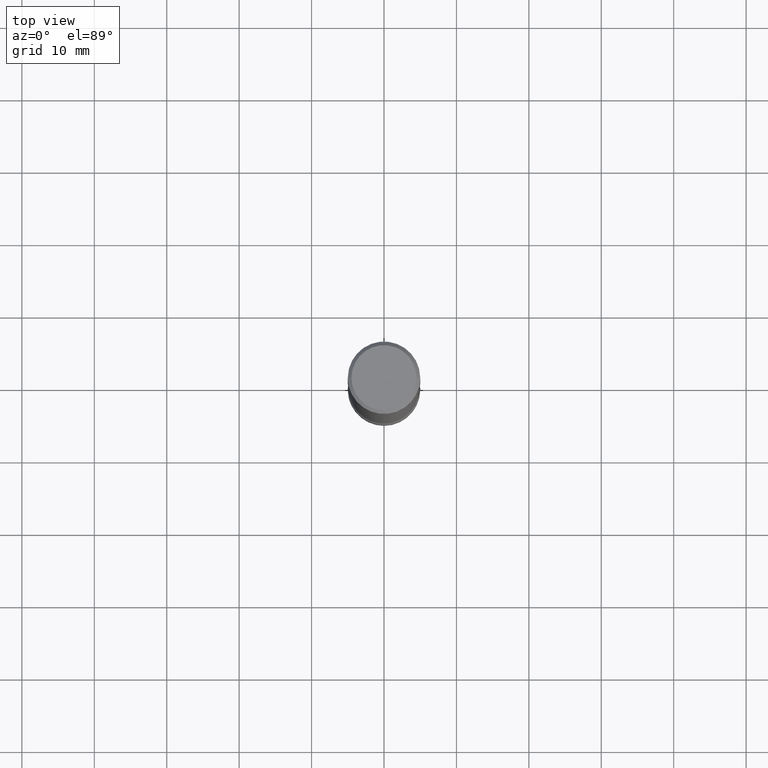
[diagram: clean part render]
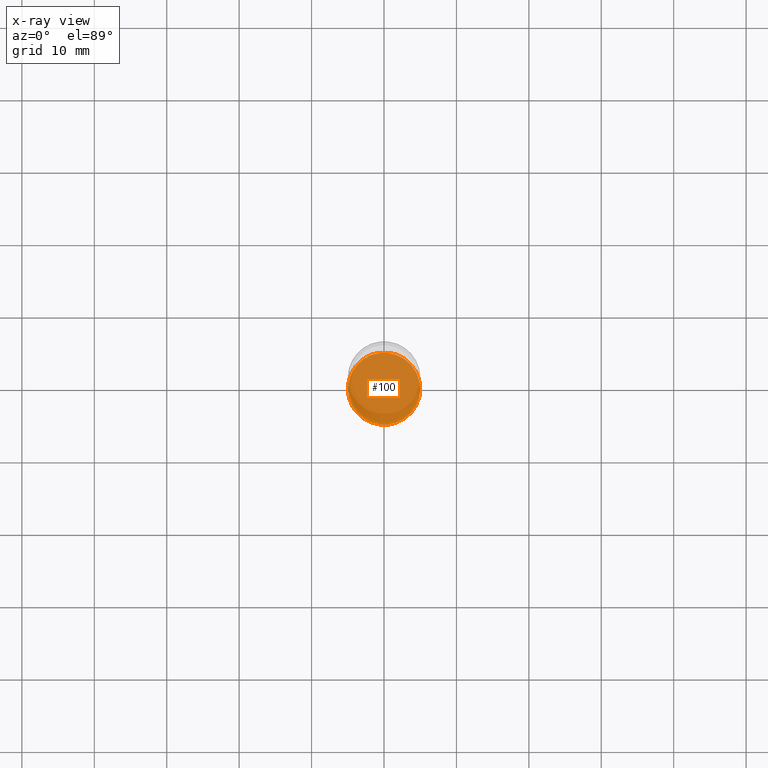
[diagram: x-ray — body ghosted, one internal face saturated and labeled with its STEP entity id]
A machine part, top view, then the same camera in x-ray: the body is ghosted and one INTERNAL B-rep face — a face not visible from any outside direction — is saturated and labeled: STEP entity #100.
In plain terms, the highlighted planar face has unit normal (0, -0, -1).
Its self-contained STEP definition (entity closure, byte-faithful):
#46 = CARTESIAN_POINT ( 'NONE',  ( 1.371104721763778671E-15, 0.1963499999999872847, -3.464600000000000346 ) ) ;
#92 = PLANE ( 'NONE',  #565 ) ;
#97 = DIRECTION ( 'NONE',  ( 2.438088387897960049E-29, -3.491481338843145188E-15, -1.000000000000000000 ) ) ;
#100 = ADVANCED_FACE ( 'NONE', ( #318 ), #92, .T. ) ;
#105 = AXIS2_PLACEMENT_3D ( 'NONE', #310, #468, #395 ) ;
#127 = EDGE_CURVE ( 'NONE', #526, #510, #491, .T. ) ;
#174 = ORIENTED_EDGE ( 'NONE', *, *, #387, .T. ) ;
#224 = DIRECTION ( 'NONE',  ( -1.000000000000000000, 6.982962677686264344E-15, 0.000000000000000000 ) ) ;
#280 = DIRECTION ( 'NONE',  ( -1.000000000000000000, 6.982962677686265922E-15, -4.876176775795935793E-29 ) ) ;
#310 = CARTESIAN_POINT ( 'NONE',  ( 8.472571225909024784E-29, -1.209658624655596216E-14, -3.464599999999999902 ) ) ;
#318 = FACE_OUTER_BOUND ( 'NONE', #430, .T. ) ;
#355 = AXIS2_PLACEMENT_3D ( 'NONE', #531, #358, #224 ) ;
#358 = DIRECTION ( 'NONE',  ( 2.445468806185136597E-29, -3.491481338843145583E-15, -1.000000000000000000 ) ) ;
#387 = EDGE_CURVE ( 'NONE', #510, #526, #458, .T. ) ;
#395 = DIRECTION ( 'NONE',  ( -1.000000000000000000, 6.982962677686264344E-15, 0.000000000000000000 ) ) ;
#408 = CARTESIAN_POINT ( 'NONE',  ( 0.1963499999999993584, -1.346833222622179061E-14, -3.464599999999999902 ) ) ;
#430 = EDGE_LOOP ( 'NONE', ( #174, #489 ) ) ;
#446 = CARTESIAN_POINT ( 'NONE',  ( -0.1963499999999993584, -1.069948931888517385E-14, -3.464599999999999902 ) ) ;
#458 = CIRCLE ( 'NONE', #105, 0.1963499999999993584 ) ;
#468 = DIRECTION ( 'NONE',  ( 2.445468806185136597E-29, -3.491481338843145583E-15, -1.000000000000000000 ) ) ;
#489 = ORIENTED_EDGE ( 'NONE', *, *, #127, .T. ) ;
#491 = CIRCLE ( 'NONE', #355, 0.1963499999999993584 ) ;
#510 = VERTEX_POINT ( 'NONE', #408 ) ;
#526 = VERTEX_POINT ( 'NONE', #446 ) ;
#531 = CARTESIAN_POINT ( 'NONE',  ( 8.472571225909024784E-29, -1.209658624655596216E-14, -3.464599999999999902 ) ) ;
#565 = AXIS2_PLACEMENT_3D ( 'NONE', #46, #97, #280 ) ;